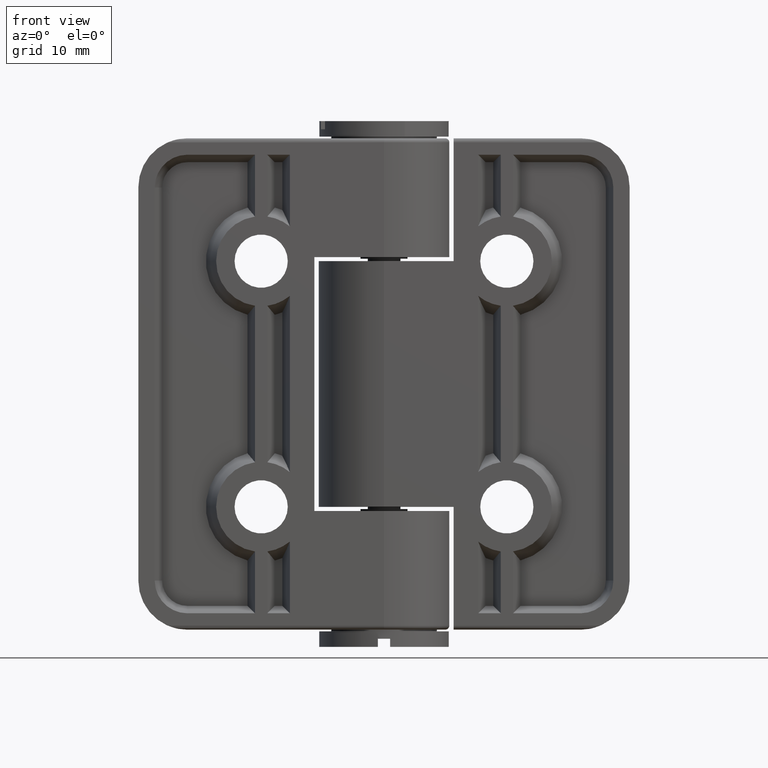
[diagram: clean part render]
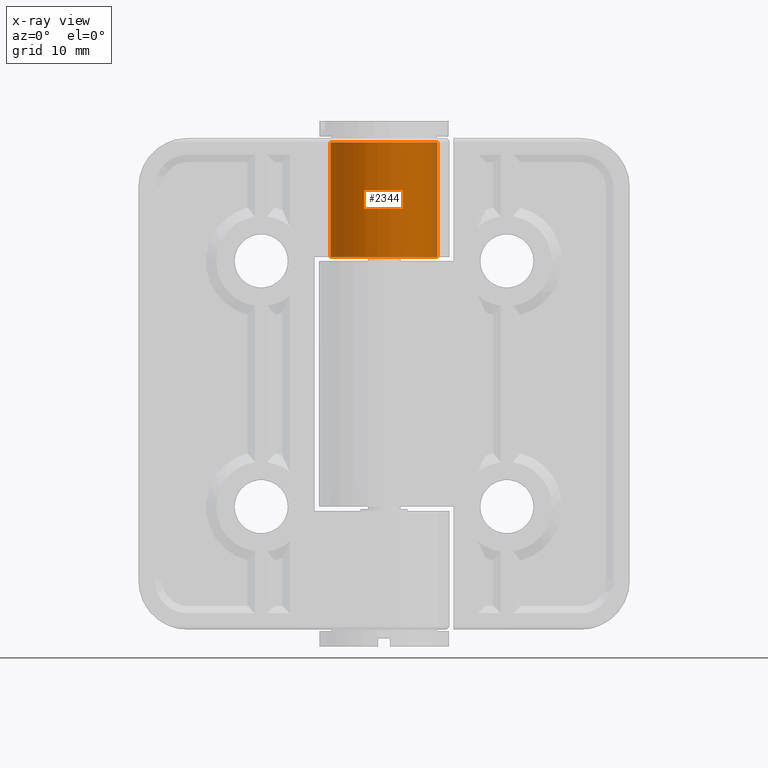
[diagram: x-ray — body ghosted, one internal face saturated and labeled with its STEP entity id]
A machine part, front view, then the same camera in x-ray: the body is ghosted and one INTERNAL B-rep face — a face not visible from any outside direction — is saturated and labeled: STEP entity #2344.
In plain terms, the highlighted cylindrical surface (bore or boss wall) has radius 6.525 mm, axis along (-0, 0, 1).
Its self-contained STEP definition (entity closure, byte-faithful):
#123=CYLINDRICAL_SURFACE('',#2565,6.525);
#211=FACE_BOUND('',#498,.T.);
#311=FACE_OUTER_BOUND('',#497,.T.);
#497=EDGE_LOOP('',(#1873));
#498=EDGE_LOOP('',(#1874));
#966=CIRCLE('',#2561,6.525);
#969=CIRCLE('',#2566,6.525);
#1145=VERTEX_POINT('',#3829);
#1153=VERTEX_POINT('',#3849);
#1407=EDGE_CURVE('',#1145,#1145,#966,.T.);
#1415=EDGE_CURVE('',#1153,#1153,#969,.T.);
#1873=ORIENTED_EDGE('',*,*,#1415,.T.);
#1874=ORIENTED_EDGE('',*,*,#1407,.F.);
#2344=ADVANCED_FACE('',(#311,#211),#123,.F.);
#2561=AXIS2_PLACEMENT_3D('',#3830,#3057,#3058);
#2565=AXIS2_PLACEMENT_3D('',#3848,#3069,#3070);
#2566=AXIS2_PLACEMENT_3D('',#3850,#3071,#3072);
#3057=DIRECTION('center_axis',(0.,0.,-1.));
#3058=DIRECTION('ref_axis',(-1.,0.,0.));
#3069=DIRECTION('center_axis',(0.,0.,1.));
#3070=DIRECTION('ref_axis',(-1.,0.,0.));
#3071=DIRECTION('center_axis',(0.,0.,-1.));
#3072=DIRECTION('ref_axis',(-1.,0.,0.));
#3829=CARTESIAN_POINT('',(6.525,-7.99082036443648E-16,29.5));
#3830=CARTESIAN_POINT('Origin',(0.,0.,29.5));
#3848=CARTESIAN_POINT('Origin',(0.,0.,0.));
#3849=CARTESIAN_POINT('',(6.525,-7.99082036443648E-16,15.5));
#3850=CARTESIAN_POINT('Origin',(0.,0.,15.5));